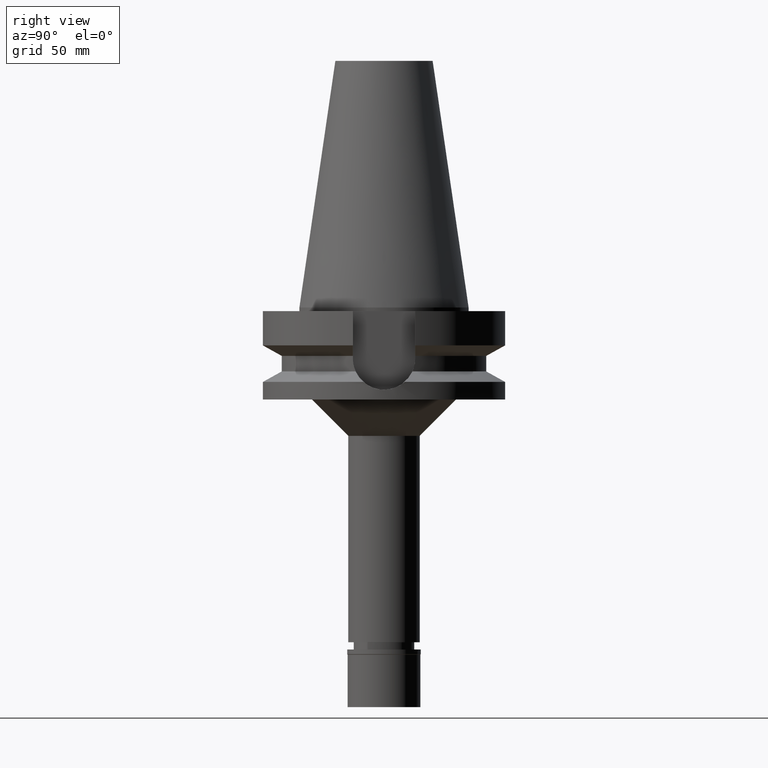
[diagram: clean part render]
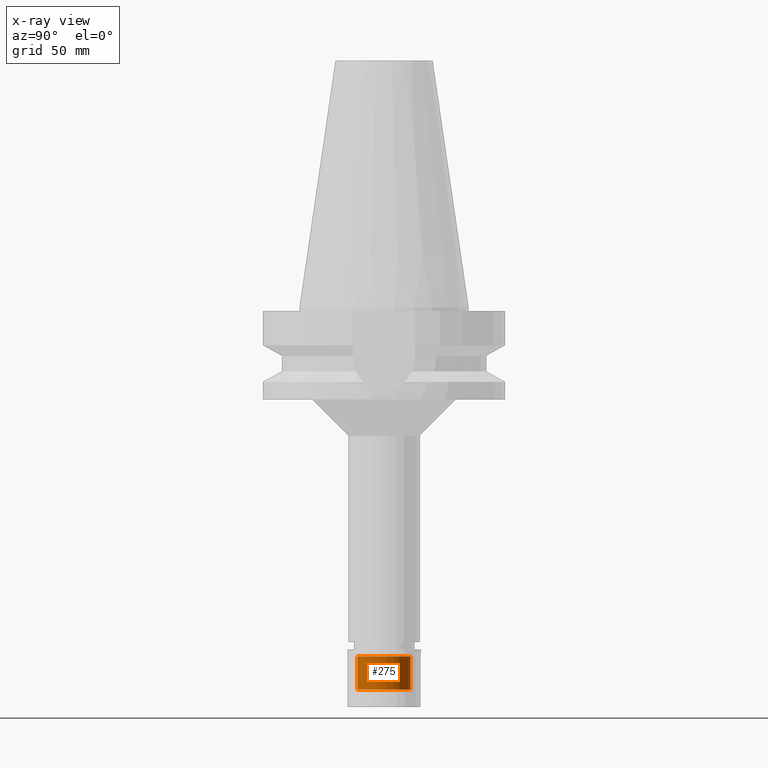
[diagram: x-ray — body ghosted, one internal face saturated and labeled with its STEP entity id]
A machine part, right view, then the same camera in x-ray: the body is ghosted and one INTERNAL B-rep face — a face not visible from any outside direction — is saturated and labeled: STEP entity #275.
In plain terms, the highlighted cylindrical surface (edge-blend (fillet) strip) has radius 11 mm, axis along (0, 0, -1).
Its self-contained STEP definition (entity closure, byte-faithful):
#170 = CIRCLE ( 'NONE', #1952, 11.00000000000000000 ) ;
#275 = ADVANCED_FACE ( 'NONE', ( #879 ), #867, .F. ) ;
#312 = CARTESIAN_POINT ( 'NONE',  ( 0.0000000000000000000, 0.0000000000000000000, 0.0000000000000000000 ) ) ;
#355 = EDGE_CURVE ( 'NONE', #1371, #1940, #170, .T. ) ;
#446 = VECTOR ( 'NONE', #1948, 1000.000000000000000 ) ;
#559 = DIRECTION ( 'NONE',  ( 0.0000000000000000000, -1.000000000000000000, 0.0000000000000000000 ) ) ;
#565 = EDGE_CURVE ( 'NONE', #1851, #1184, #1605, .T. ) ;
#586 = LINE ( 'NONE', #1564, #1286 ) ;
#673 = EDGE_LOOP ( 'NONE', ( #1479, #2313, #2410, #1047 ) ) ;
#867 = CYLINDRICAL_SURFACE ( 'NONE', #1704, 11.00000000000000000 ) ;
#879 = FACE_OUTER_BOUND ( 'NONE', #673, .T. ) ;
#934 = AXIS2_PLACEMENT_3D ( 'NONE', #2003, #2758, #559 ) ;
#1047 = ORIENTED_EDGE ( 'NONE', *, *, #2912, .F. ) ;
#1090 = CARTESIAN_POINT ( 'NONE',  ( 0.0000000000000000000, 11.00000000000000000, -2.899999999999999911 ) ) ;
#1140 = DIRECTION ( 'NONE',  ( 0.0000000000000000000, 0.0000000000000000000, -1.000000000000000000 ) ) ;
#1184 = VERTEX_POINT ( 'NONE', #1090 ) ;
#1286 = VECTOR ( 'NONE', #1752, 1000.000000000000000 ) ;
#1371 = VERTEX_POINT ( 'NONE', #1673 ) ;
#1461 = CARTESIAN_POINT ( 'NONE',  ( 0.0000000000000000000, -11.00000000000000000, -2.899999999999999911 ) ) ;
#1479 = ORIENTED_EDGE ( 'NONE', *, *, #355, .T. ) ;
#1564 = CARTESIAN_POINT ( 'NONE',  ( 0.0000000000000000000, 11.00000000000000000, -16.50000000000000000 ) ) ;
#1605 = CIRCLE ( 'NONE', #934, 11.00000000000000000 ) ;
#1673 = CARTESIAN_POINT ( 'NONE',  ( 0.0000000000000000000, 11.00000000000000000, -16.50000000000000000 ) ) ;
#1704 = AXIS2_PLACEMENT_3D ( 'NONE', #312, #1140, #2242 ) ;
#1752 = DIRECTION ( 'NONE',  ( 0.0000000000000000000, 0.0000000000000000000, 1.000000000000000000 ) ) ;
#1763 = LINE ( 'NONE', #2735, #446 ) ;
#1851 = VERTEX_POINT ( 'NONE', #1461 ) ;
#1940 = VERTEX_POINT ( 'NONE', #2424 ) ;
#1948 = DIRECTION ( 'NONE',  ( 0.0000000000000000000, 0.0000000000000000000, 1.000000000000000000 ) ) ;
#1952 = AXIS2_PLACEMENT_3D ( 'NONE', #2197, #2898, #2392 ) ;
#2003 = CARTESIAN_POINT ( 'NONE',  ( 0.0000000000000000000, 0.0000000000000000000, -2.899999999999999911 ) ) ;
#2197 = CARTESIAN_POINT ( 'NONE',  ( 0.0000000000000000000, 0.0000000000000000000, -16.50000000000000000 ) ) ;
#2203 = EDGE_CURVE ( 'NONE', #1940, #1851, #1763, .T. ) ;
#2242 = DIRECTION ( 'NONE',  ( 0.0000000000000000000, -1.000000000000000000, 0.0000000000000000000 ) ) ;
#2313 = ORIENTED_EDGE ( 'NONE', *, *, #2203, .T. ) ;
#2392 = DIRECTION ( 'NONE',  ( 0.0000000000000000000, 1.000000000000000000, 0.0000000000000000000 ) ) ;
#2410 = ORIENTED_EDGE ( 'NONE', *, *, #565, .T. ) ;
#2424 = CARTESIAN_POINT ( 'NONE',  ( 0.0000000000000000000, -11.00000000000000000, -16.50000000000000000 ) ) ;
#2735 = CARTESIAN_POINT ( 'NONE',  ( 0.0000000000000000000, -11.00000000000000000, -16.50000000000000000 ) ) ;
#2758 = DIRECTION ( 'NONE',  ( 0.0000000000000000000, 0.0000000000000000000, 1.000000000000000000 ) ) ;
#2898 = DIRECTION ( 'NONE',  ( 0.0000000000000000000, 0.0000000000000000000, -1.000000000000000000 ) ) ;
#2912 = EDGE_CURVE ( 'NONE', #1371, #1184, #586, .T. ) ;